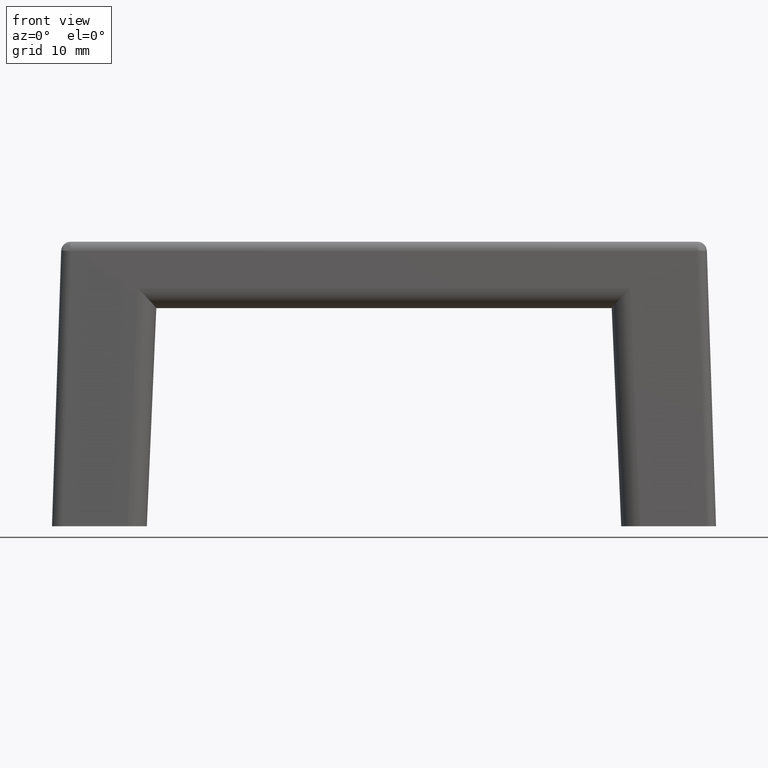
[diagram: clean part render]
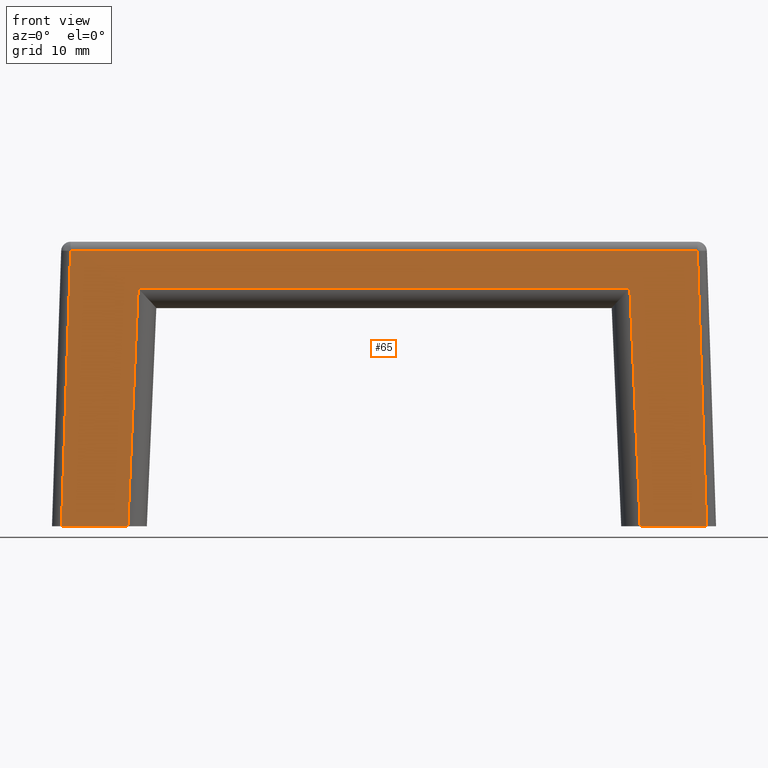
[diagram: same view with one face highlighted and labeled with its STEP entity id]
A machine part, front view. The second image highlights one B-rep face of the part: STEP entity #65.
In plain terms, the highlighted planar face has unit normal (0, 0.9994, -0.0333).
Its self-contained STEP definition (entity closure, byte-faithful):
#65=ADVANCED_FACE('',(#327),#326,.F.);
#326=PLANE('',#596);
#327=FACE_OUTER_BOUND('',#597,.T.);
#593=CARTESIAN_POINT('',(-4.08006664326E+01,-6.09680107644E+00,-2.90333228537E+00));
#594=DIRECTION('',(0.00000000000E+00,9.99444639499E-01,-3.33228536849E-02));
#595=DIRECTION('',(0.00000000000E+00,3.33228536849E-02,9.99444639499E-01));
#596=AXIS2_PLACEMENT_3D('',#593,#594,#595);
#597=EDGE_LOOP('',(#771,#772,#773,#774,#775,#776,#777,#778));
#771=ORIENTED_EDGE('',*,*,#879,.F.);
#772=ORIENTED_EDGE('',*,*,#827,.T.);
#773=ORIENTED_EDGE('',*,*,#833,.T.);
#774=ORIENTED_EDGE('',*,*,#838,.T.);
#775=ORIENTED_EDGE('',*,*,#874,.F.);
#776=ORIENTED_EDGE('',*,*,#865,.T.);
#777=ORIENTED_EDGE('',*,*,#860,.T.);
#778=ORIENTED_EDGE('',*,*,#853,.T.);
#827=EDGE_CURVE('',#1008,#1001,#1009,.T.);
#833=EDGE_CURVE('',#1001,#1041,#1048,.T.);
#838=EDGE_CURVE('',#1041,#1074,#1082,.T.);
#853=EDGE_CURVE('',#1184,#1176,#1185,.T.);
#860=EDGE_CURVE('',#1217,#1184,#1231,.T.);
#865=EDGE_CURVE('',#1251,#1217,#1264,.T.);
#874=EDGE_CURVE('',#1251,#1074,#1318,.T.);
#879=EDGE_CURVE('',#1008,#1176,#1351,.T.);
#1001=VERTEX_POINT('',#1492);
#1008=VERTEX_POINT('',#1498);
#1009=LINE('',#1499,#1500);
#1041=VERTEX_POINT('',#1520);
#1048=LINE('',#1526,#1527);
#1074=VERTEX_POINT('',#1542);
#1082=LINE('',#1549,#1550);
#1176=VERTEX_POINT('',#1611);
#1184=VERTEX_POINT('',#1616);
#1185=LINE('',#1617,#1618);
#1217=VERTEX_POINT('',#1637);
#1231=LINE('',#1646,#1647);
#1251=VERTEX_POINT('',#1659);
#1264=LINE('',#1666,#1667);
#1318=LINE('',#1693,#1694);
#1351=LINE('',#1714,#1715);
#1492=CARTESIAN_POINT('',(-2.59149329449E+01,-5.16424368668E+00,2.50666457074E+01));
#1498=CARTESIAN_POINT('',(-2.70047871061E+01,-6.00000000000E+00,0.00000000000E+00));
#1499=CARTESIAN_POINT('',(-2.70047871061E+01,-6.00000000000E+00,0.00000000000E+00));
#1500=VECTOR('',#1501,2.51042426240E+01);
#1501=DIRECTION('',(4.34131464355E-02,3.32914370627E-02,9.98502368017E-01));
#1520=CARTESIAN_POINT('',(2.59149329449E+01,-5.16424368668E+00,2.50666457074E+01));
#1526=CARTESIAN_POINT('',(-2.59149329449E+01,-5.16424368668E+00,2.50666457074E+01));
#1527=VECTOR('',#1528,5.18298658898E+01);
#1528=DIRECTION('',(1.00000000000E+00,0.00000000000E+00,0.00000000000E+00));
#1542=CARTESIAN_POINT('',(2.70047871061E+01,-6.00000000000E+00,0.00000000000E+00));
#1549=CARTESIAN_POINT('',(2.59149329449E+01,-5.16424368668E+00,2.50666457074E+01));
#1550=VECTOR('',#1551,2.51042426240E+01);
#1551=DIRECTION('',(4.34131464355E-02,-3.32914370627E-02,-9.98502368017E-01));
#1611=CARTESIAN_POINT('',(-3.40005553605E+01,-6.00000000000E+00,0.00000000000E+00));
#1616=CARTESIAN_POINT('',(-3.30327445983E+01,-5.03198923562E+00,2.90333228537E+01));
#1617=CARTESIAN_POINT('',(-3.30327445983E+01,-5.03198923562E+00,2.90333228537E+01));
#1618=VECTOR('',#1619,2.90655730795E+01);
#1619=DIRECTION('',(-3.32974945828E-02,-3.33043756522E-02,-9.98890432138E-01));
#1637=CARTESIAN_POINT('',(3.30327445983E+01,-5.03198923562E+00,2.90333228537E+01));
#1646=CARTESIAN_POINT('',(3.30327445983E+01,-5.03198923562E+00,2.90333228537E+01));
#1647=VECTOR('',#1648,6.60654891966E+01);
#1648=DIRECTION('',(-1.00000000000E+00,0.00000000000E+00,0.00000000000E+00));
#1659=CARTESIAN_POINT('',(3.40005553605E+01,-6.00000000000E+00,0.00000000000E+00));
#1666=CARTESIAN_POINT('',(3.40005553605E+01,-6.00000000000E+00,0.00000000000E+00));
#1667=VECTOR('',#1668,2.90655730795E+01);
#1668=DIRECTION('',(-3.32974945828E-02,3.33043756522E-02,9.98890432138E-01));
#1693=CARTESIAN_POINT('',(3.40005553605E+01,-6.00000000000E+00,0.00000000000E+00));
#1694=VECTOR('',#1695,6.99576825438E+00);
#1695=DIRECTION('',(-1.00000000000E+00,0.00000000000E+00,0.00000000000E+00));
#1714=CARTESIAN_POINT('',(-2.70047871061E+01,-6.00000000000E+00,0.00000000000E+00));
#1715=VECTOR('',#1716,6.99576825438E+00);
#1716=DIRECTION('',(-1.00000000000E+00,0.00000000000E+00,0.00000000000E+00));